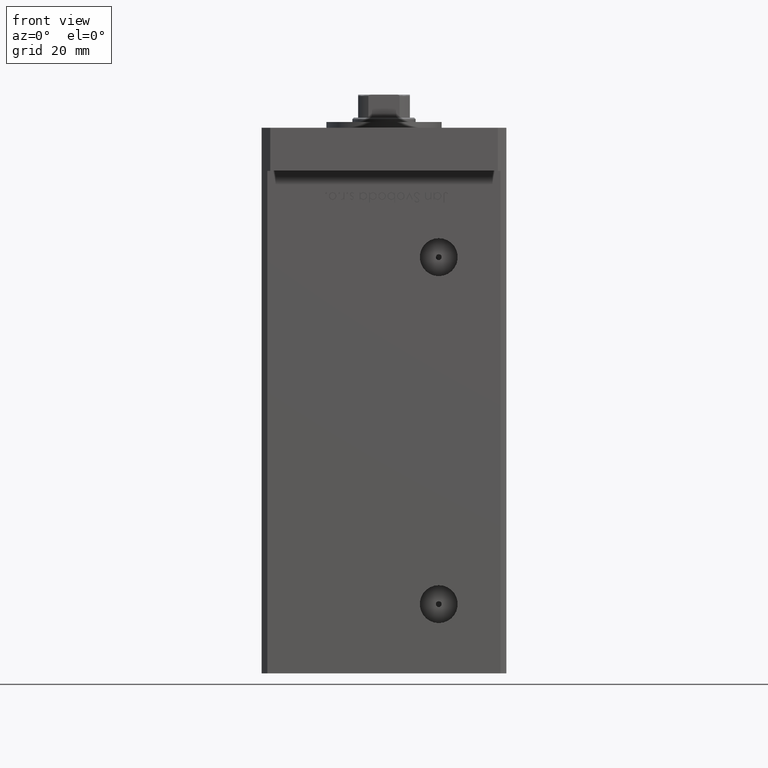
[diagram: clean part render]
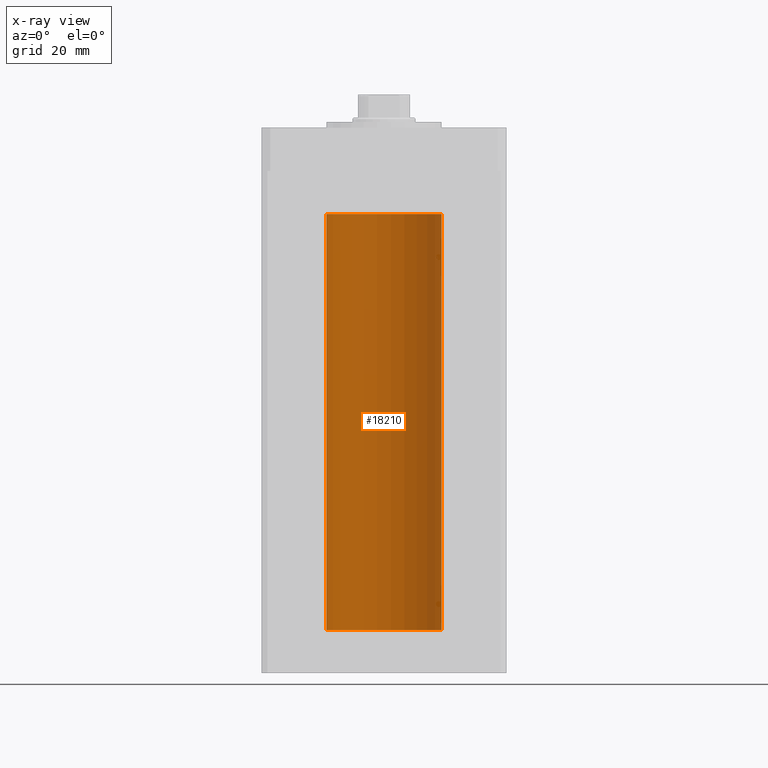
[diagram: x-ray — body ghosted, one internal face saturated and labeled with its STEP entity id]
A machine part, front view, then the same camera in x-ray: the body is ghosted and one INTERNAL B-rep face — a face not visible from any outside direction — is saturated and labeled: STEP entity #18210.
In plain terms, the highlighted cylindrical surface (partial cylindrical patch) has radius 20 mm, axis along (-0, -0, -1).
Its self-contained STEP definition (entity closure, byte-faithful):
#288 = EDGE_CURVE ( 'NONE', #47358, #38950, #23364, .T. ) ;
#1526 = FACE_OUTER_BOUND ( 'NONE', #10658, .T. ) ;
#1660 = CARTESIAN_POINT ( 'NONE',  ( -20.00000000000000000, 0.000000000000000000, 144.5000000000000000 ) ) ;
#2337 = DIRECTION ( 'NONE',  ( -0.000000000000000000, -0.000000000000000000, -1.000000000000000000 ) ) ;
#6738 = VERTEX_POINT ( 'NONE', #53096 ) ;
#8079 = VECTOR ( 'NONE', #49966, 1000.000000000000000 ) ;
#9003 = AXIS2_PLACEMENT_3D ( 'NONE', #12844, #29410, #53036 ) ;
#9440 = ORIENTED_EDGE ( 'NONE', *, *, #10130, .T. ) ;
#9959 = CIRCLE ( 'NONE', #40313, 20.00000000000000000 ) ;
#10130 = EDGE_CURVE ( 'NONE', #47358, #6738, #9959, .T. ) ;
#10658 = EDGE_LOOP ( 'NONE', ( #50130, #9440, #49673, #49943 ) ) ;
#12844 = CARTESIAN_POINT ( 'NONE',  ( 0.000000000000000000, 0.000000000000000000, 0.000000000000000000 ) ) ;
#13174 = AXIS2_PLACEMENT_3D ( 'NONE', #18057, #2337, #22153 ) ;
#15191 = CARTESIAN_POINT ( 'NONE',  ( 20.00000000000000000, 2.449293598294706513E-15, 144.5000000000000000 ) ) ;
#15890 = CARTESIAN_POINT ( 'NONE',  ( 20.00000000000000000, 2.449293598294706513E-15, 144.5000000000000000 ) ) ;
#16238 = CARTESIAN_POINT ( 'NONE',  ( -20.00000000000000000, 0.000000000000000000, 0.000000000000000000 ) ) ;
#18057 = CARTESIAN_POINT ( 'NONE',  ( 0.000000000000000000, 0.000000000000000000, 144.5000000000000000 ) ) ;
#18210 = ADVANCED_FACE ( 'NONE', ( #1526 ), #50903, .F. ) ;
#22153 = DIRECTION ( 'NONE',  ( -1.000000000000000000, 0.000000000000000000, 0.000000000000000000 ) ) ;
#23364 = LINE ( 'NONE', #15191, #40849 ) ;
#24568 = EDGE_CURVE ( 'NONE', #6738, #41418, #38826, .T. ) ;
#24953 = DIRECTION ( 'NONE',  ( -0.000000000000000000, -0.000000000000000000, -1.000000000000000000 ) ) ;
#27751 = EDGE_CURVE ( 'NONE', #38950, #41418, #31552, .T. ) ;
#29410 = DIRECTION ( 'NONE',  ( -0.000000000000000000, 0.000000000000000000, 1.000000000000000000 ) ) ;
#31239 = CARTESIAN_POINT ( 'NONE',  ( 20.00000000000000000, 2.449293598294706513E-15, 0.000000000000000000 ) ) ;
#31552 = CIRCLE ( 'NONE', #9003, 20.00000000000000000 ) ;
#38826 = LINE ( 'NONE', #1660, #8079 ) ;
#38950 = VERTEX_POINT ( 'NONE', #31239 ) ;
#40313 = AXIS2_PLACEMENT_3D ( 'NONE', #47023, #50841, #51360 ) ;
#40849 = VECTOR ( 'NONE', #24953, 1000.000000000000000 ) ;
#41418 = VERTEX_POINT ( 'NONE', #16238 ) ;
#47023 = CARTESIAN_POINT ( 'NONE',  ( 0.000000000000000000, 0.000000000000000000, 144.5000000000000000 ) ) ;
#47358 = VERTEX_POINT ( 'NONE', #15890 ) ;
#49673 = ORIENTED_EDGE ( 'NONE', *, *, #24568, .T. ) ;
#49943 = ORIENTED_EDGE ( 'NONE', *, *, #27751, .F. ) ;
#49966 = DIRECTION ( 'NONE',  ( -0.000000000000000000, -0.000000000000000000, -1.000000000000000000 ) ) ;
#50130 = ORIENTED_EDGE ( 'NONE', *, *, #288, .F. ) ;
#50841 = DIRECTION ( 'NONE',  ( -0.000000000000000000, 0.000000000000000000, 1.000000000000000000 ) ) ;
#50903 = CYLINDRICAL_SURFACE ( 'NONE', #13174, 20.00000000000000000 ) ;
#51360 = DIRECTION ( 'NONE',  ( 1.000000000000000000, 0.000000000000000000, 0.000000000000000000 ) ) ;
#53036 = DIRECTION ( 'NONE',  ( 1.000000000000000000, 0.000000000000000000, 0.000000000000000000 ) ) ;
#53096 = CARTESIAN_POINT ( 'NONE',  ( -20.00000000000000000, 0.000000000000000000, 144.5000000000000000 ) ) ;